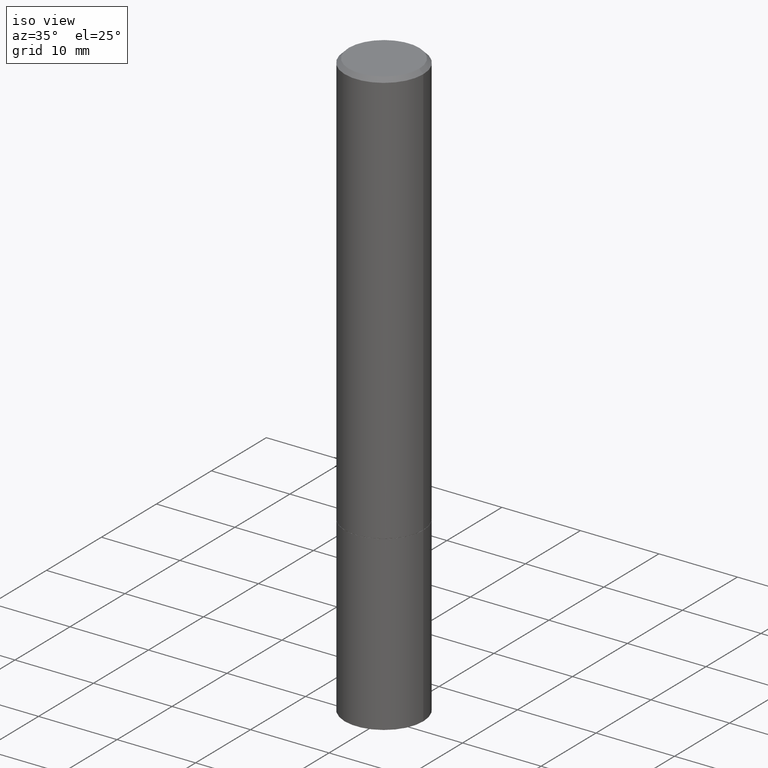
[diagram: clean part render]
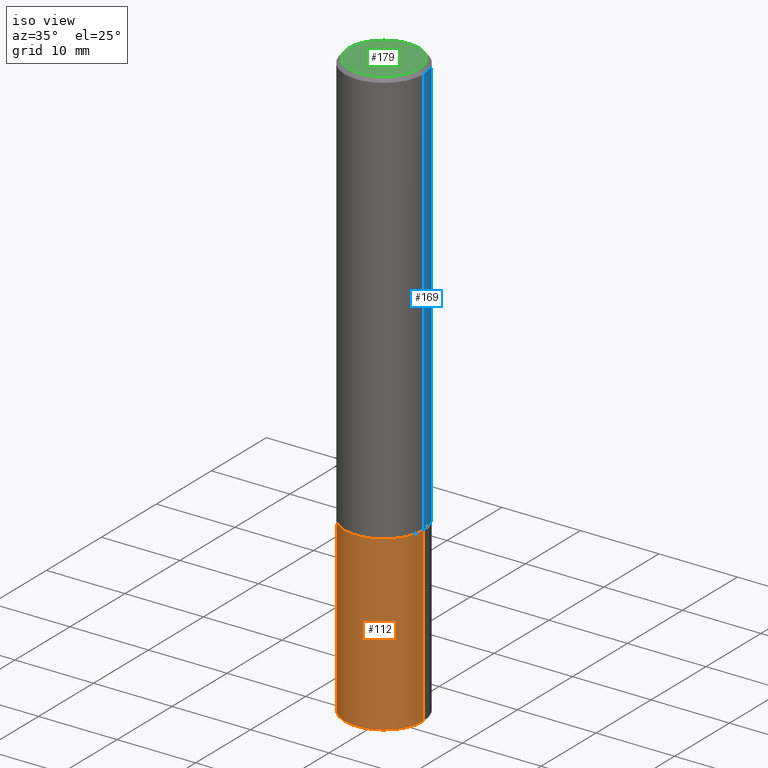
[diagram: same view with three faces highlighted in distinct colors, each labeled with its STEP entity id]
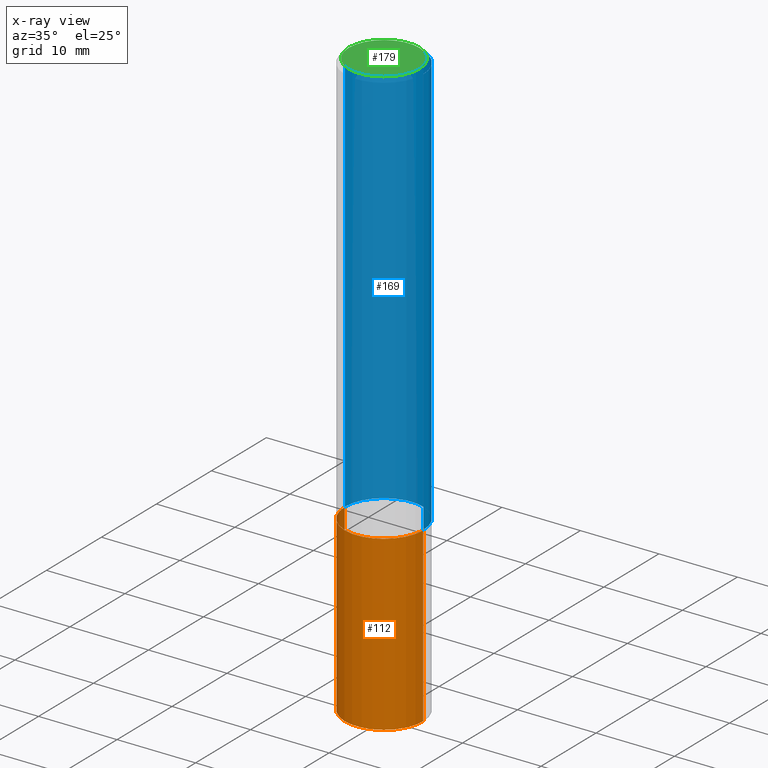
[diagram: x-ray of the same camera — body ghosted, the three highlighted faces saturated]
A machine part, iso view with three faces highlighted in distinct colors.
The next image is the same camera in x-ray (body ghosted, the three faces saturated) — at least one of them is partly hidden behind the body in this view.
Their STEP definitions:

[orange] entity #112 — the highlighted cylindrical surface (partial cylindrical patch) has radius 5 mm, axis along (-0, 0, 1).
#5 = CARTESIAN_POINT ( 'NONE',  ( 7.220980290903470182E-29, -1.030964609733603853E-14, -2.952799999999999869 ) ) ;
#23 = CIRCLE ( 'NONE', #197, 0.1968500000000000250 ) ;
#28 = DIRECTION ( 'NONE',  ( -2.445468806185136877E-29, 3.491481338843145188E-15, 1.000000000000000000 ) ) ;
#32 = CARTESIAN_POINT ( 'NONE',  ( 0.1968500000000000250, -1.168424230043858014E-14, -2.952799999999999869 ) ) ;
#33 = VERTEX_POINT ( 'NONE', #32 ) ;
#50 = CARTESIAN_POINT ( 'NONE',  ( -0.1968500000000000250, 1.398703375343757393E-15, -9.682923725166783677E-30 ) ) ;
#92 = ORIENTED_EDGE ( 'NONE', *, *, #114, .T. ) ;
#93 = DIRECTION ( 'NONE',  ( -2.445468806185136597E-29, 3.491481338843145583E-15, 1.000000000000000000 ) ) ;
#103 = EDGE_CURVE ( 'NONE', #33, #263, #344, .T. ) ;
#112 = ADVANCED_FACE ( 'NONE', ( #145 ), #173, .T. ) ;
#113 = AXIS2_PLACEMENT_3D ( 'NONE', #324, #93, #117 ) ;
#114 = EDGE_CURVE ( 'NONE', #143, #33, #23, .T. ) ;
#117 = DIRECTION ( 'NONE',  ( 1.000000000000000000, -6.982962677686265922E-15, 4.876176775795935793E-29 ) ) ;
#143 = VERTEX_POINT ( 'NONE', #267 ) ;
#145 = FACE_OUTER_BOUND ( 'NONE', #358, .T. ) ;
#153 = AXIS2_PLACEMENT_3D ( 'NONE', #165, #162, #331 ) ;
#160 = ORIENTED_EDGE ( 'NONE', *, *, #249, .F. ) ;
#162 = DIRECTION ( 'NONE',  ( -2.445468806185136597E-29, 3.491481338843145583E-15, 1.000000000000000000 ) ) ;
#165 = CARTESIAN_POINT ( 'NONE',  ( 5.102959757866523939E-29, -7.285674109763990928E-15, -2.086699999999999999 ) ) ;
#173 = CYLINDRICAL_SURFACE ( 'NONE', #113, 0.1968500000000000250 ) ;
#192 = VERTEX_POINT ( 'NONE', #251 ) ;
#197 = AXIS2_PLACEMENT_3D ( 'NONE', #5, #210, #231 ) ;
#204 = VECTOR ( 'NONE', #279, 39.37007874015748143 ) ;
#210 = DIRECTION ( 'NONE',  ( -2.445468806185136597E-29, 3.491481338843145583E-15, 1.000000000000000000 ) ) ;
#219 = CIRCLE ( 'NONE', #153, 0.1968500000000000250 ) ;
#222 = ORIENTED_EDGE ( 'NONE', *, *, #103, .T. ) ;
#231 = DIRECTION ( 'NONE',  ( 1.000000000000000000, -6.982962677686267499E-15, 0.000000000000000000 ) ) ;
#233 = CARTESIAN_POINT ( 'NONE',  ( 0.1968500000000000250, -1.374596203102541608E-15, 9.598753983154300858E-30 ) ) ;
#235 = VECTOR ( 'NONE', #28, 39.37007874015748143 ) ;
#249 = EDGE_CURVE ( 'NONE', #192, #263, #219, .T. ) ;
#251 = CARTESIAN_POINT ( 'NONE',  ( -0.1968500000000000250, -7.398956728206258518E-15, -2.086699999999999999 ) ) ;
#254 = EDGE_CURVE ( 'NONE', #143, #192, #306, .T. ) ;
#263 = VERTEX_POINT ( 'NONE', #327 ) ;
#267 = CARTESIAN_POINT ( 'NONE',  ( -0.1968500000000000250, -7.398956728206258518E-15, -2.952799999999999869 ) ) ;
#279 = DIRECTION ( 'NONE',  ( -2.445468806185136877E-29, 3.491481338843145188E-15, 1.000000000000000000 ) ) ;
#306 = LINE ( 'NONE', #50, #204 ) ;
#324 = CARTESIAN_POINT ( 'NONE',  ( 0.000000000000000000, 0.000000000000000000, 0.000000000000000000 ) ) ;
#327 = CARTESIAN_POINT ( 'NONE',  ( 0.1968500000000000250, -8.660270312866532536E-15, -2.086699999999999999 ) ) ;
#331 = DIRECTION ( 'NONE',  ( 1.000000000000000000, -6.982962677686267499E-15, 0.000000000000000000 ) ) ;
#343 = ORIENTED_EDGE ( 'NONE', *, *, #254, .F. ) ;
#344 = LINE ( 'NONE', #233, #235 ) ;
#358 = EDGE_LOOP ( 'NONE', ( #343, #92, #222, #160 ) ) ;

[blue] entity #169 — the highlighted cylindrical surface (partial cylindrical patch) has radius 5 mm, axis along (-0, 0, 1).
#1 = ORIENTED_EDGE ( 'NONE', *, *, #198, .F. ) ;
#10 = CARTESIAN_POINT ( 'NONE',  ( 5.100514289060338336E-29, -7.282182628425147921E-15, -2.085699999999999665 ) ) ;
#29 = VERTEX_POINT ( 'NONE', #149 ) ;
#64 = CARTESIAN_POINT ( 'NONE',  ( -0.1968499999999999139, 1.398703375343756604E-15, -9.682923725166778072E-30 ) ) ;
#71 = CARTESIAN_POINT ( 'NONE',  ( 0.1968499999999997752, -1.420318657638187347E-15, -0.02000000000000001776 ) ) ;
#74 = CIRCLE ( 'NONE', #135, 0.1968500000000000250 ) ;
#98 = DIRECTION ( 'NONE',  ( -2.445468806185136597E-29, 3.491481338843145583E-15, 1.000000000000000000 ) ) ;
#102 = DIRECTION ( 'NONE',  ( -2.445468806185136877E-29, 3.491481338843145188E-15, 1.000000000000000000 ) ) ;
#106 = VERTEX_POINT ( 'NONE', #264 ) ;
#116 = CARTESIAN_POINT ( 'NONE',  ( 4.890937612370276662E-31, -6.982962677686296539E-17, -0.02000000000000001776 ) ) ;
#118 = EDGE_LOOP ( 'NONE', ( #214, #151, #349, #1 ) ) ;
#125 = DIRECTION ( 'NONE',  ( -2.445468806185136597E-29, 3.491481338843145583E-15, 1.000000000000000000 ) ) ;
#127 = FACE_OUTER_BOUND ( 'NONE', #118, .T. ) ;
#131 = EDGE_CURVE ( 'NONE', #232, #29, #209, .T. ) ;
#135 = AXIS2_PLACEMENT_3D ( 'NONE', #10, #125, #242 ) ;
#136 = CARTESIAN_POINT ( 'NONE',  ( -0.1968500000000000250, -2.277302752257247033E-15, -2.085699999999999665 ) ) ;
#146 = AXIS2_PLACEMENT_3D ( 'NONE', #353, #98, #158 ) ;
#149 = CARTESIAN_POINT ( 'NONE',  ( -0.1968499999999997752, 1.304766576325677127E-15, -0.02000000000000001776 ) ) ;
#151 = ORIENTED_EDGE ( 'NONE', *, *, #131, .T. ) ;
#158 = DIRECTION ( 'NONE',  ( 1.000000000000000000, -6.982962677686266711E-15, 4.876176775795935793E-29 ) ) ;
#164 = AXIS2_PLACEMENT_3D ( 'NONE', #116, #244, #273 ) ;
#169 = ADVANCED_FACE ( 'NONE', ( #127 ), #243, .T. ) ;
#175 = DIRECTION ( 'NONE',  ( -2.445468806185136877E-29, 3.491481338843145188E-15, 1.000000000000000000 ) ) ;
#198 = EDGE_CURVE ( 'NONE', #106, #261, #220, .T. ) ;
#209 = LINE ( 'NONE', #64, #350 ) ;
#214 = ORIENTED_EDGE ( 'NONE', *, *, #366, .T. ) ;
#220 = LINE ( 'NONE', #355, #224 ) ;
#224 = VECTOR ( 'NONE', #102, 39.37007874015748143 ) ;
#232 = VERTEX_POINT ( 'NONE', #136 ) ;
#242 = DIRECTION ( 'NONE',  ( 1.000000000000000000, -6.982962677686267499E-15, 0.000000000000000000 ) ) ;
#243 = CYLINDRICAL_SURFACE ( 'NONE', #146, 0.1968499999999999139 ) ;
#244 = DIRECTION ( 'NONE',  ( -2.445468806185136597E-29, 3.491481338843145583E-15, 1.000000000000000000 ) ) ;
#261 = VERTEX_POINT ( 'NONE', #71 ) ;
#264 = CARTESIAN_POINT ( 'NONE',  ( 0.1968500000000000250, -8.656778831527691107E-15, -2.085699999999999665 ) ) ;
#268 = CIRCLE ( 'NONE', #164, 0.1968499999999997752 ) ;
#273 = DIRECTION ( 'NONE',  ( 1.000000000000000000, -6.982962677686266711E-15, 0.000000000000000000 ) ) ;
#336 = EDGE_CURVE ( 'NONE', #261, #29, #268, .T. ) ;
#349 = ORIENTED_EDGE ( 'NONE', *, *, #336, .F. ) ;
#350 = VECTOR ( 'NONE', #175, 39.37007874015748143 ) ;
#353 = CARTESIAN_POINT ( 'NONE',  ( 0.000000000000000000, 0.000000000000000000, 0.000000000000000000 ) ) ;
#355 = CARTESIAN_POINT ( 'NONE',  ( 0.1968499999999999139, -1.374596203102541017E-15, 9.598753983154295253E-30 ) ) ;
#366 = EDGE_CURVE ( 'NONE', #106, #232, #74, .T. ) ;

[green] entity #179 — the highlighted planar face has unit normal (0, -0, -1).
#15 = DIRECTION ( 'NONE',  ( -2.445468806185136597E-29, 3.491481338843145583E-15, 1.000000000000000000 ) ) ;
#30 = ORIENTED_EDGE ( 'NONE', *, *, #86, .T. ) ;
#40 = DIRECTION ( 'NONE',  ( 1.000000000000000000, -6.982962677686266711E-15, 4.875932113059884174E-29 ) ) ;
#86 = EDGE_CURVE ( 'NONE', #91, #177, #278, .T. ) ;
#91 = VERTEX_POINT ( 'NONE', #229 ) ;
#100 = DIRECTION ( 'NONE',  ( 1.000000000000000000, -6.982962677686266711E-15, 4.875932113059884174E-29 ) ) ;
#121 = AXIS2_PLACEMENT_3D ( 'NONE', #360, #15, #100 ) ;
#132 = PLANE ( 'NONE',  #277 ) ;
#139 = AXIS2_PLACEMENT_3D ( 'NONE', #188, #265, #40 ) ;
#177 = VERTEX_POINT ( 'NONE', #329 ) ;
#179 = ADVANCED_FACE ( 'NONE', ( #304 ), #132, .F. ) ;
#188 = CARTESIAN_POINT ( 'NONE',  ( -1.043851414335219820E-46, 1.490343170380447200E-32, 4.268512490100411279E-18 ) ) ;
#193 = DIRECTION ( 'NONE',  ( 2.438088387897960049E-29, -3.491481338843145188E-15, -1.000000000000000000 ) ) ;
#227 = EDGE_CURVE ( 'NONE', #177, #91, #328, .T. ) ;
#229 = CARTESIAN_POINT ( 'NONE',  ( -0.1768499999999997851, 1.269851762937246069E-15, 4.268512490091652920E-18 ) ) ;
#247 = DIRECTION ( 'NONE',  ( -1.000000000000000000, 6.982962677686265922E-15, -4.876176775795935793E-29 ) ) ;
#265 = DIRECTION ( 'NONE',  ( -2.445468806185136597E-29, 3.491481338843145583E-15, 1.000000000000000000 ) ) ;
#277 = AXIS2_PLACEMENT_3D ( 'NONE', #356, #193, #247 ) ;
#278 = CIRCLE ( 'NONE', #139, 0.1768499999999997851 ) ;
#304 = FACE_OUTER_BOUND ( 'NONE', #325, .T. ) ;
#325 = EDGE_LOOP ( 'NONE', ( #30, #326 ) ) ;
#326 = ORIENTED_EDGE ( 'NONE', *, *, #227, .T. ) ;
#328 = CIRCLE ( 'NONE', #121, 0.1768499999999997851 ) ;
#329 = CARTESIAN_POINT ( 'NONE',  ( 0.1768499999999997851, -1.316798864272040563E-15, 4.268512490109333727E-18 ) ) ;
#356 = CARTESIAN_POINT ( 'NONE',  ( 1.234936949548814617E-15, 0.1768499999999997851, -6.153342185293593634E-16 ) ) ;
#360 = CARTESIAN_POINT ( 'NONE',  ( -1.043851414335219820E-46, 1.490343170380447200E-32, 4.268512490100411279E-18 ) ) ;